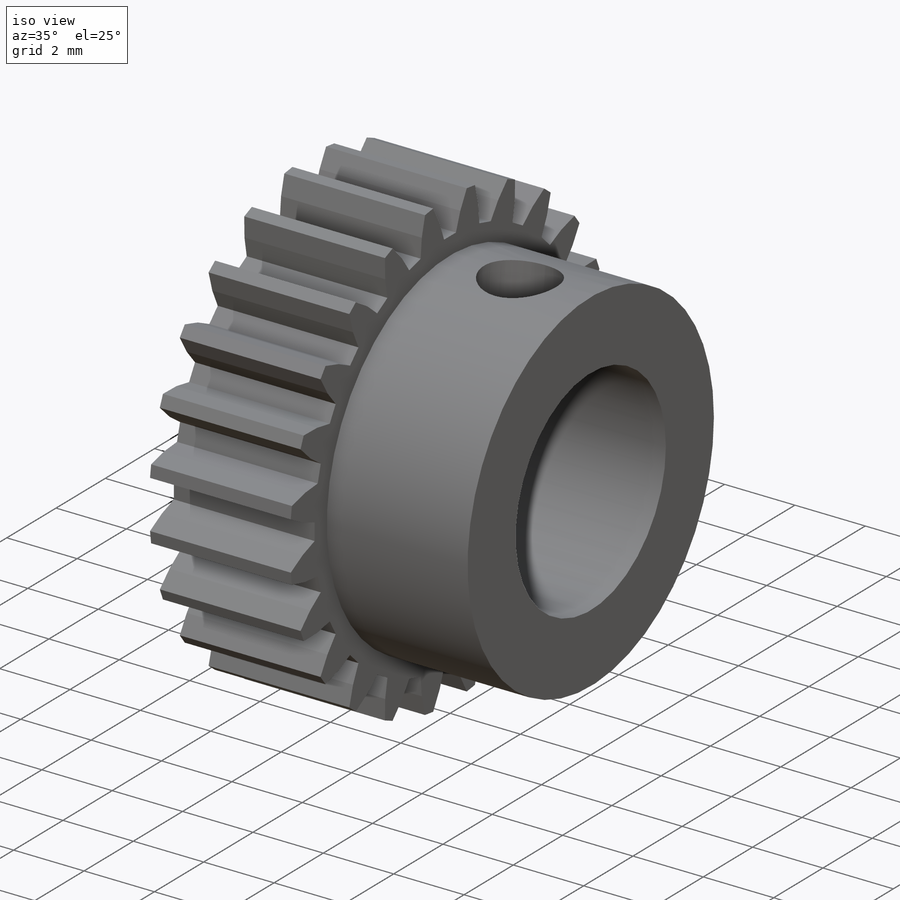
[diagram: iso view]
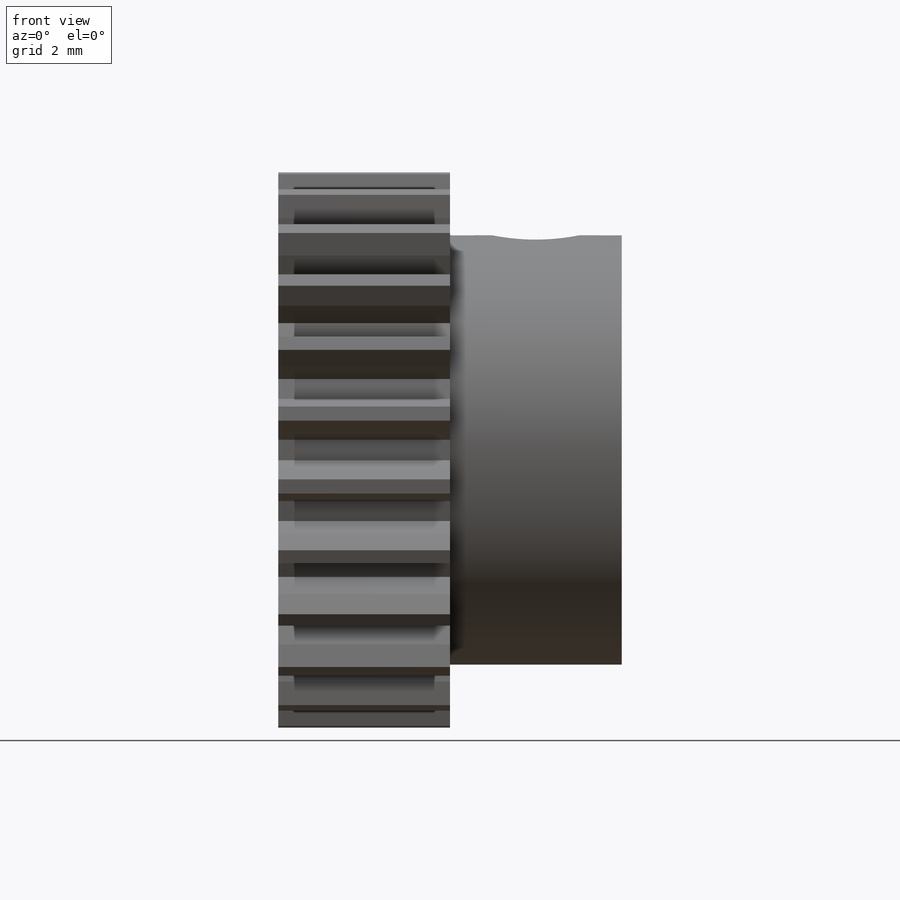
[diagram: front view]
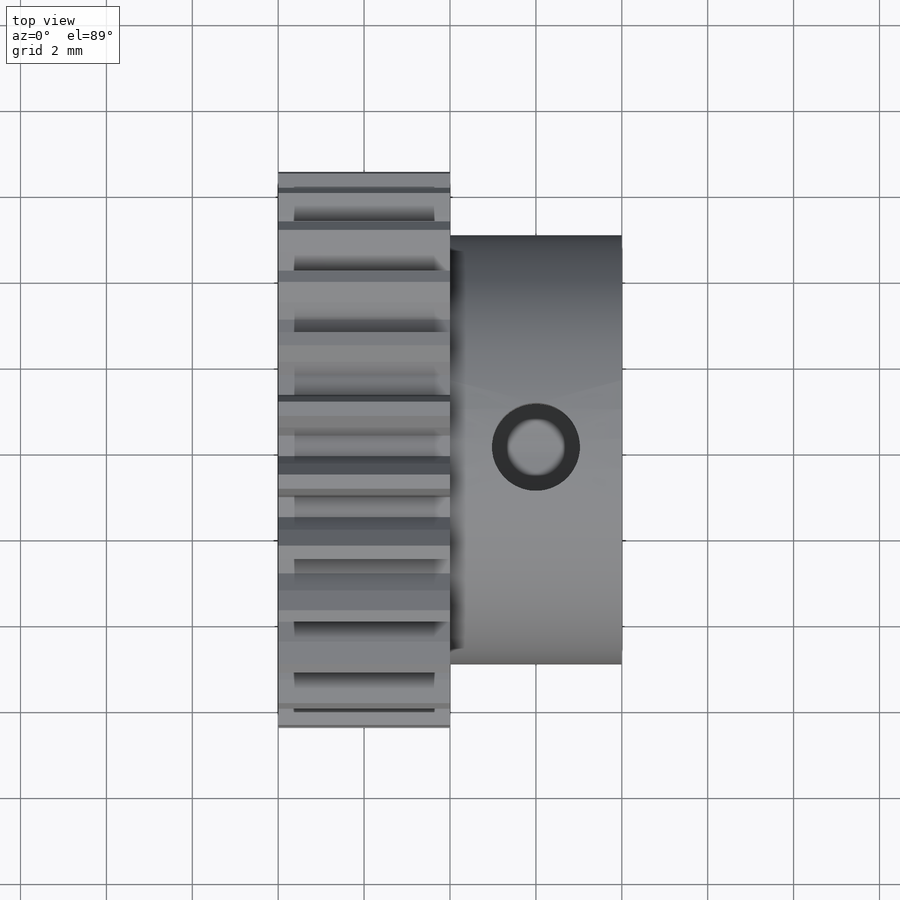
[diagram: top view]
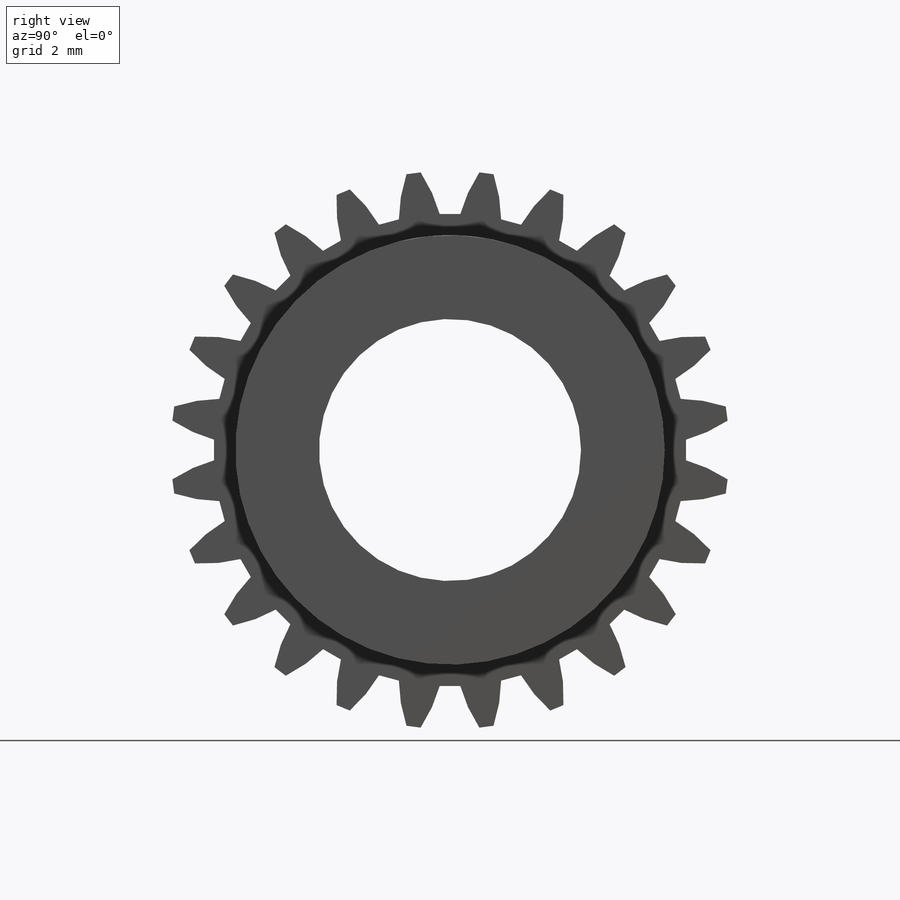
[diagram: right view]
SOLIDWORKS PART (.sldprt)
format: sldprt  version: not decoded by parser v0  size: 391,168 bytes
history: native  units: mm
features: sketch x6, plane x2, hole x2, material x1, extrude x1, revolve x1 (+13 scaffold rows collapsed)
feature tree (26):
  scaffold x13  (default folders/planes/origin — collapsed)
  material  "Plain Carbon Steel"
  plane  "Plane1"  Offset=2mm
  sketch  "Sketch1"
  extrude  "Boss-Extrude1"  Depth=4mm
  sketch  "Sketch2"
  revolve  "Revolve1"  Angle=360deg
  hole  "Ø6.1 (6.1) Diameter Hole1"  Diameter=6.1mm Depth=8mm
  sketch  "Sketch4"
  sketch  "Sketch3"  dims[hole-wizard template sketch: 59 standard entries collapsed; hole parameters kept: c18.Thru Hole Dia.=6.1mm c18.Thru Hole Depth=8.0mm]
  plane  "Plane2"
  hole  "Ø2.05 (2.05) Diameter Hole1"  Diameter=2.05mm Depth=10mm
  sketch  "Sketch6"
  sketch  "Sketch5"  dims[hole-wizard template sketch: 47 standard entries collapsed; hole parameters kept: c15.Hole Depth=10.0mm c15.D3=~14.816244mm c15.Drill Angle=180.0deg]
decode coverage: 6 of 10 modeling features carry decoded parameters
note: ~ marks probable driven/reference dimensions
note: suppression state not decoded; provenance and decode notes live in map.json
